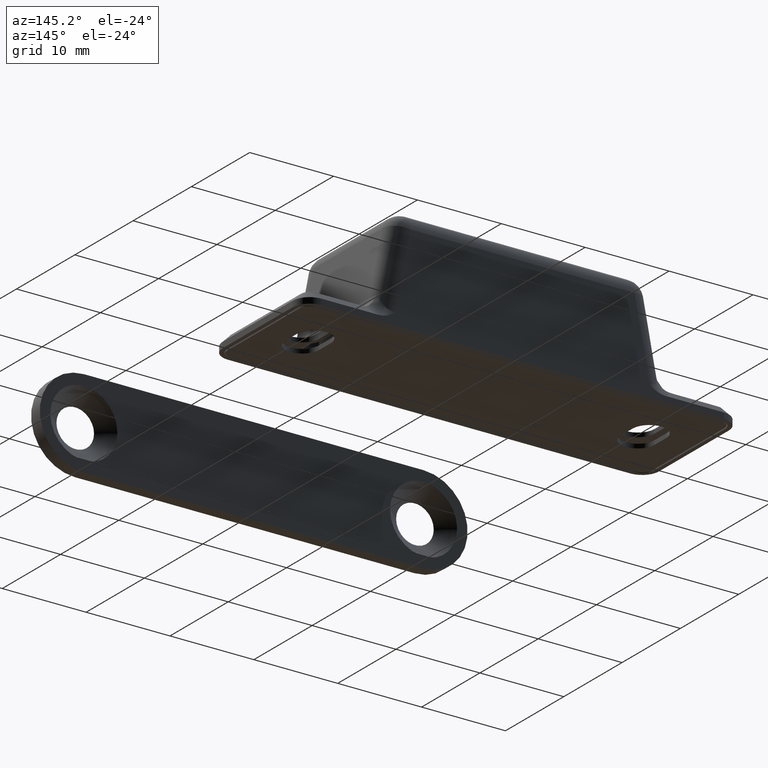
[diagram: clean part render]
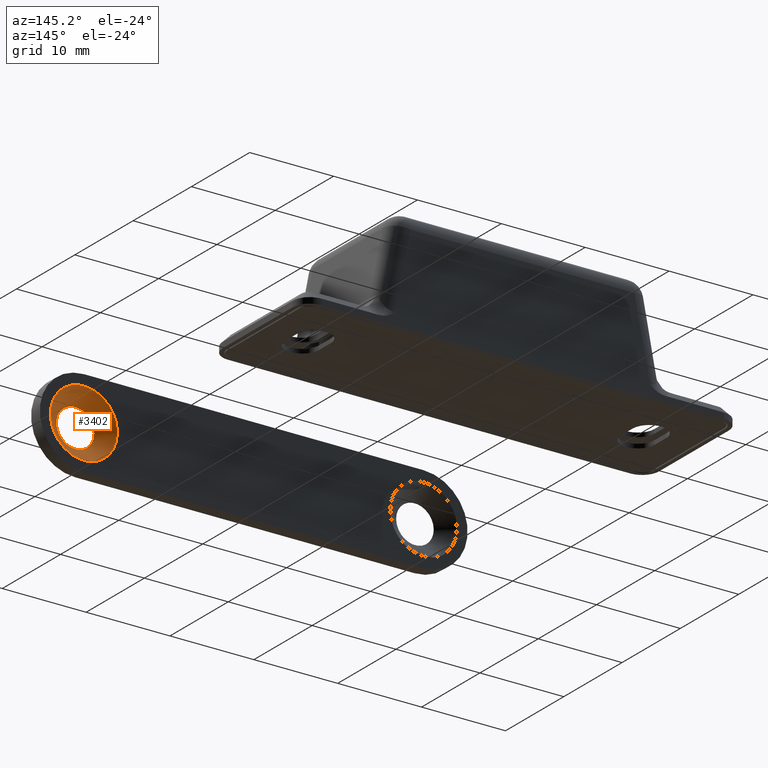
[diagram: same view with one face highlighted and labeled with its STEP entity id]
A machine part, auxiliary view. The second image highlights one B-rep face of the part: STEP entity #3402.
In plain terms, the highlighted conical surface has half-angle 50 deg.
Its self-contained STEP definition (entity closure, byte-faithful):
#59=CONICAL_SURFACE('',#3727,3.125,50.);
#73=FACE_BOUND('',#626,.T.);
#419=FACE_OUTER_BOUND('',#625,.T.);
#625=EDGE_LOOP('',(#3125));
#626=EDGE_LOOP('',(#3126));
#1382=CIRCLE('',#3728,4.);
#1383=CIRCLE('',#3729,2.25);
#1688=VERTEX_POINT('',#6381);
#1689=VERTEX_POINT('',#6383);
#2170=EDGE_CURVE('',#1688,#1688,#1382,.T.);
#2171=EDGE_CURVE('',#1689,#1689,#1383,.T.);
#3125=ORIENTED_EDGE('',*,*,#2170,.F.);
#3126=ORIENTED_EDGE('',*,*,#2171,.F.);
#3402=ADVANCED_FACE('',(#419,#73),#59,.F.);
#3727=AXIS2_PLACEMENT_3D('',#6380,#4653,#4654);
#3728=AXIS2_PLACEMENT_3D('',#6382,#4655,#4656);
#3729=AXIS2_PLACEMENT_3D('',#6384,#4657,#4658);
#4653=DIRECTION('center_axis',(0.,0.,1.));
#4654=DIRECTION('ref_axis',(1.,0.,0.));
#4655=DIRECTION('center_axis',(0.,0.,-1.));
#4656=DIRECTION('ref_axis',(1.,0.,0.));
#4657=DIRECTION('center_axis',(0.,0.,1.));
#4658=DIRECTION('ref_axis',(1.,0.,0.));
#6380=CARTESIAN_POINT('Origin',(40.5,0.,0.76578782271988));
#6381=CARTESIAN_POINT('',(44.5,0.,1.5));
#6382=CARTESIAN_POINT('Origin',(40.5,0.,1.5));
#6383=CARTESIAN_POINT('',(42.75,0.,0.03157564543976));
#6384=CARTESIAN_POINT('Origin',(40.5,0.,0.0315756454397553));